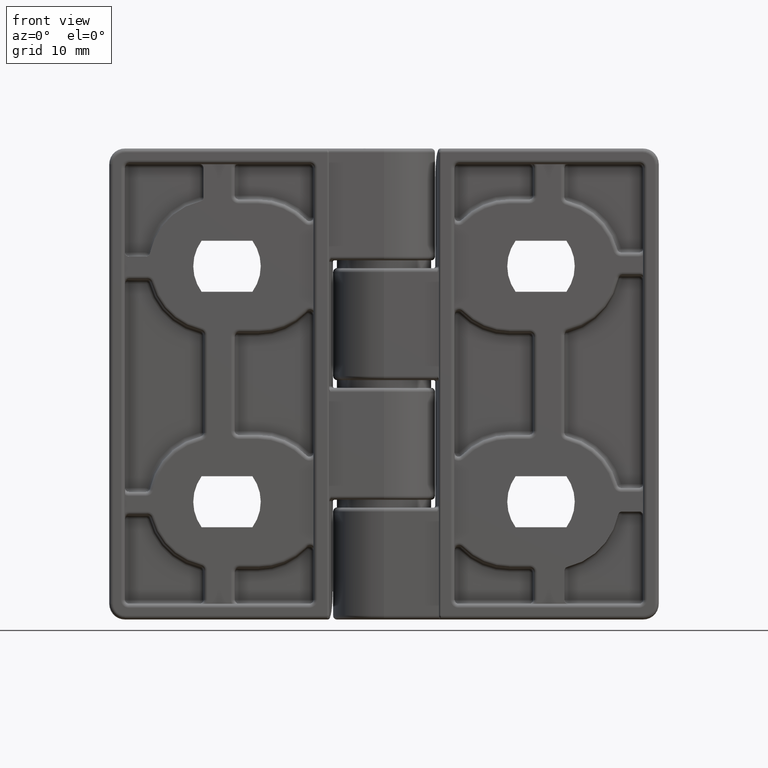
[diagram: clean part render]
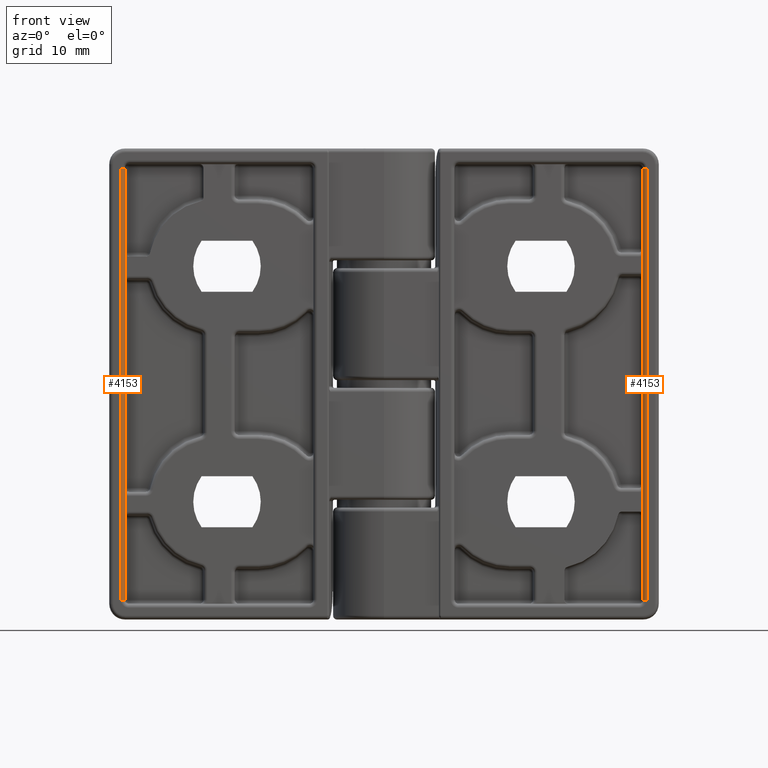
[diagram: same view with one multi-face feature highlighted, each face labeled with its STEP entity id]
A machine part, front view. The highlighted faces form ONE feature: a constant-radius fillet chain: 2 tangent blend faces with common blend radius 0.5 mm. The faces share edges in the B-rep.
Their STEP definitions:
[1] entity #4153 (Cylinder):
#282=LINE('',#6982,#540);
#286=LINE('',#7006,#544);
#323=LINE('',#7172,#581);
#324=LINE('',#7175,#582);
#325=LINE('',#7176,#583);
#326=LINE('',#7177,#584);
#540=VECTOR('',#5311,3.13397459688);
#544=VECTOR('',#5331,2.2679491927);
#581=VECTOR('',#5480,55.);
#582=VECTOR('',#5483,11.11602540378);
#583=VECTOR('',#5484,27.73205080664);
#584=VECTOR('',#5485,10.7500000013763);
#756=CYLINDRICAL_SURFACE('',#4563,0.5);
#923=FACE_OUTER_BOUND('',#1224,.T.);
#1224=EDGE_LOOP('',(#3143,#3144,#3145,#3146,#3147,#3148,#3149,#3150));
#1559=CIRCLE('',#4555,0.5);
#1566=CIRCLE('',#4564,0.5);
#1887=VERTEX_POINT('',#6979);
#1888=VERTEX_POINT('',#6981);
#1899=VERTEX_POINT('',#7003);
#1900=VERTEX_POINT('',#7005);
#1949=VERTEX_POINT('',#7144);
#1950=VERTEX_POINT('',#7146);
#1961=VERTEX_POINT('',#7170);
#1962=VERTEX_POINT('',#7174);
#2287=EDGE_CURVE('',#1888,#1887,#282,.T.);
#2299=EDGE_CURVE('',#1900,#1899,#286,.T.);
#2364=EDGE_CURVE('',#1949,#1950,#1559,.T.);
#2377=EDGE_CURVE('',#1961,#1949,#323,.T.);
#2378=EDGE_CURVE('',#1962,#1900,#324,.T.);
#2379=EDGE_CURVE('',#1899,#1888,#325,.T.);
#2380=EDGE_CURVE('',#1887,#1950,#326,.T.);
#2381=EDGE_CURVE('',#1961,#1962,#1566,.T.);
#3143=ORIENTED_EDGE('',*,*,#2378,.T.);
#3144=ORIENTED_EDGE('',*,*,#2299,.T.);
#3145=ORIENTED_EDGE('',*,*,#2379,.T.);
#3146=ORIENTED_EDGE('',*,*,#2287,.T.);
#3147=ORIENTED_EDGE('',*,*,#2380,.T.);
#3148=ORIENTED_EDGE('',*,*,#2364,.F.);
#3149=ORIENTED_EDGE('',*,*,#2377,.F.);
#3150=ORIENTED_EDGE('',*,*,#2381,.T.);
#4153=ADVANCED_FACE('',(#923),#756,.T.);
#4555=AXIS2_PLACEMENT_3D('',#7147,#5458,#5459);
#4563=AXIS2_PLACEMENT_3D('',#7173,#5481,#5482);
#4564=AXIS2_PLACEMENT_3D('',#7178,#5486,#5487);
#5311=DIRECTION('',(-1.38569993115041E-11,-1.,0.));
#5331=DIRECTION('',(-1.14099021006535E-11,-1.,0.));
#5458=DIRECTION('center_axis',(0.,-1.,0.));
#5459=DIRECTION('ref_axis',(0.,0.,1.));
#5480=DIRECTION('',(-1.15568968536453E-11,-1.,0.));
#5481=DIRECTION('center_axis',(0.,-1.,0.));
#5482=DIRECTION('ref_axis',(0.,0.,1.));
#5483=DIRECTION('',(3.90674564457815E-12,-1.,0.));
#5484=DIRECTION('',(9.33110877316267E-13,-1.,0.));
#5485=DIRECTION('',(0.,-1.,0.));
#5486=DIRECTION('center_axis',(0.,-1.,0.));
#5487=DIRECTION('ref_axis',(0.,0.,1.));
#6979=CARTESIAN_POINT('',(33.,-16.75,6.5));
#6981=CARTESIAN_POINT('',(33.00000000004,-13.61602540312,6.5));
#6982=CARTESIAN_POINT('',(33.00000000004,-13.61602540312,6.5));
#7003=CARTESIAN_POINT('',(33.00000000002,14.11602540352,6.5));
#7005=CARTESIAN_POINT('',(33.,16.38397459622,6.5));
#7006=CARTESIAN_POINT('',(33.00000000004,16.38397459622,6.5));
#7144=CARTESIAN_POINT('',(33.5,-27.5,7.));
#7146=CARTESIAN_POINT('',(33.,-27.5000000013763,6.5));
#7147=CARTESIAN_POINT('Origin',(33.5,-27.5,6.5));
#7170=CARTESIAN_POINT('',(33.5,27.5,7.));
#7172=CARTESIAN_POINT('',(33.49999999999,27.5,7.));
#7173=CARTESIAN_POINT('Origin',(33.5,27.66294663091,6.5));
#7174=CARTESIAN_POINT('',(33.,27.5,6.5));
#7175=CARTESIAN_POINT('',(33.,27.5,6.5));
#7176=CARTESIAN_POINT('',(33.00000000002,14.11602540352,6.5));
#7177=CARTESIAN_POINT('',(33.,-16.75,6.5));
#7178=CARTESIAN_POINT('Origin',(33.5,27.5,6.5));
[2] entity #4153 (Cylinder):
#282=LINE('',#6982,#540);
#286=LINE('',#7006,#544);
#323=LINE('',#7172,#581);
#324=LINE('',#7175,#582);
#325=LINE('',#7176,#583);
#326=LINE('',#7177,#584);
#540=VECTOR('',#5311,3.13397459688);
#544=VECTOR('',#5331,2.2679491927);
#581=VECTOR('',#5480,55.);
#582=VECTOR('',#5483,11.11602540378);
#583=VECTOR('',#5484,27.73205080664);
#584=VECTOR('',#5485,10.7500000013763);
#756=CYLINDRICAL_SURFACE('',#4563,0.5);
#923=FACE_OUTER_BOUND('',#1224,.T.);
#1224=EDGE_LOOP('',(#3143,#3144,#3145,#3146,#3147,#3148,#3149,#3150));
#1559=CIRCLE('',#4555,0.5);
#1566=CIRCLE('',#4564,0.5);
#1887=VERTEX_POINT('',#6979);
#1888=VERTEX_POINT('',#6981);
#1899=VERTEX_POINT('',#7003);
#1900=VERTEX_POINT('',#7005);
#1949=VERTEX_POINT('',#7144);
#1950=VERTEX_POINT('',#7146);
#1961=VERTEX_POINT('',#7170);
#1962=VERTEX_POINT('',#7174);
#2287=EDGE_CURVE('',#1888,#1887,#282,.T.);
#2299=EDGE_CURVE('',#1900,#1899,#286,.T.);
#2364=EDGE_CURVE('',#1949,#1950,#1559,.T.);
#2377=EDGE_CURVE('',#1961,#1949,#323,.T.);
#2378=EDGE_CURVE('',#1962,#1900,#324,.T.);
#2379=EDGE_CURVE('',#1899,#1888,#325,.T.);
#2380=EDGE_CURVE('',#1887,#1950,#326,.T.);
#2381=EDGE_CURVE('',#1961,#1962,#1566,.T.);
#3143=ORIENTED_EDGE('',*,*,#2378,.T.);
#3144=ORIENTED_EDGE('',*,*,#2299,.T.);
#3145=ORIENTED_EDGE('',*,*,#2379,.T.);
#3146=ORIENTED_EDGE('',*,*,#2287,.T.);
#3147=ORIENTED_EDGE('',*,*,#2380,.T.);
#3148=ORIENTED_EDGE('',*,*,#2364,.F.);
#3149=ORIENTED_EDGE('',*,*,#2377,.F.);
#3150=ORIENTED_EDGE('',*,*,#2381,.T.);
#4153=ADVANCED_FACE('',(#923),#756,.T.);
#4555=AXIS2_PLACEMENT_3D('',#7147,#5458,#5459);
#4563=AXIS2_PLACEMENT_3D('',#7173,#5481,#5482);
#4564=AXIS2_PLACEMENT_3D('',#7178,#5486,#5487);
#5311=DIRECTION('',(-1.38569993115041E-11,-1.,0.));
#5331=DIRECTION('',(-1.14099021006535E-11,-1.,0.));
#5458=DIRECTION('center_axis',(0.,-1.,0.));
#5459=DIRECTION('ref_axis',(0.,0.,1.));
#5480=DIRECTION('',(-1.15568968536453E-11,-1.,0.));
#5481=DIRECTION('center_axis',(0.,-1.,0.));
#5482=DIRECTION('ref_axis',(0.,0.,1.));
#5483=DIRECTION('',(3.90674564457815E-12,-1.,0.));
#5484=DIRECTION('',(9.33110877316267E-13,-1.,0.));
#5485=DIRECTION('',(0.,-1.,0.));
#5486=DIRECTION('center_axis',(0.,-1.,0.));
#5487=DIRECTION('ref_axis',(0.,0.,1.));
#6979=CARTESIAN_POINT('',(33.,-16.75,6.5));
#6981=CARTESIAN_POINT('',(33.00000000004,-13.61602540312,6.5));
#6982=CARTESIAN_POINT('',(33.00000000004,-13.61602540312,6.5));
#7003=CARTESIAN_POINT('',(33.00000000002,14.11602540352,6.5));
#7005=CARTESIAN_POINT('',(33.,16.38397459622,6.5));
#7006=CARTESIAN_POINT('',(33.00000000004,16.38397459622,6.5));
#7144=CARTESIAN_POINT('',(33.5,-27.5,7.));
#7146=CARTESIAN_POINT('',(33.,-27.5000000013763,6.5));
#7147=CARTESIAN_POINT('Origin',(33.5,-27.5,6.5));
#7170=CARTESIAN_POINT('',(33.5,27.5,7.));
#7172=CARTESIAN_POINT('',(33.49999999999,27.5,7.));
#7173=CARTESIAN_POINT('Origin',(33.5,27.66294663091,6.5));
#7174=CARTESIAN_POINT('',(33.,27.5,6.5));
#7175=CARTESIAN_POINT('',(33.,27.5,6.5));
#7176=CARTESIAN_POINT('',(33.00000000002,14.11602540352,6.5));
#7177=CARTESIAN_POINT('',(33.,-16.75,6.5));
#7178=CARTESIAN_POINT('Origin',(33.5,27.5,6.5));